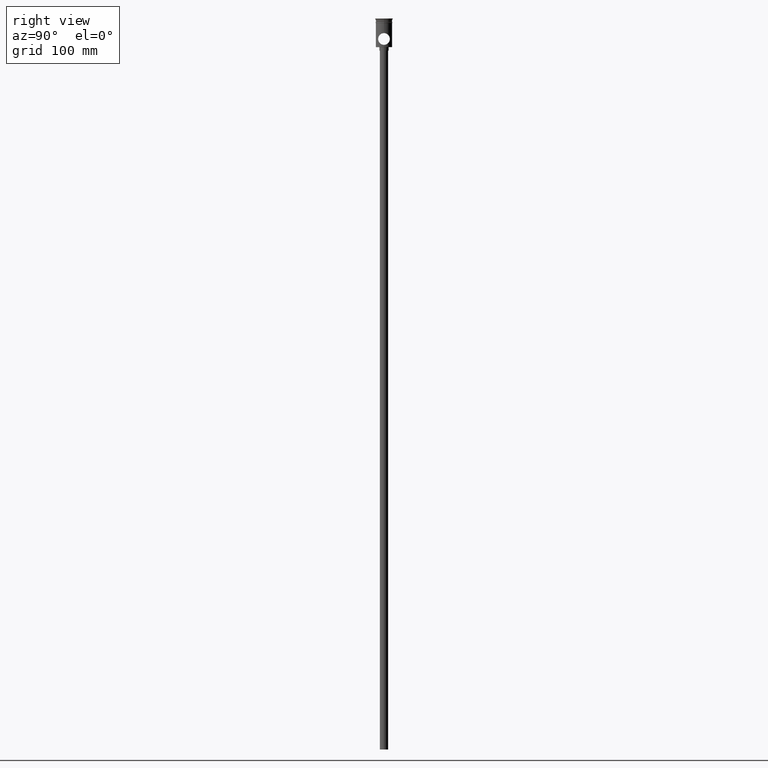
[diagram: clean part render]
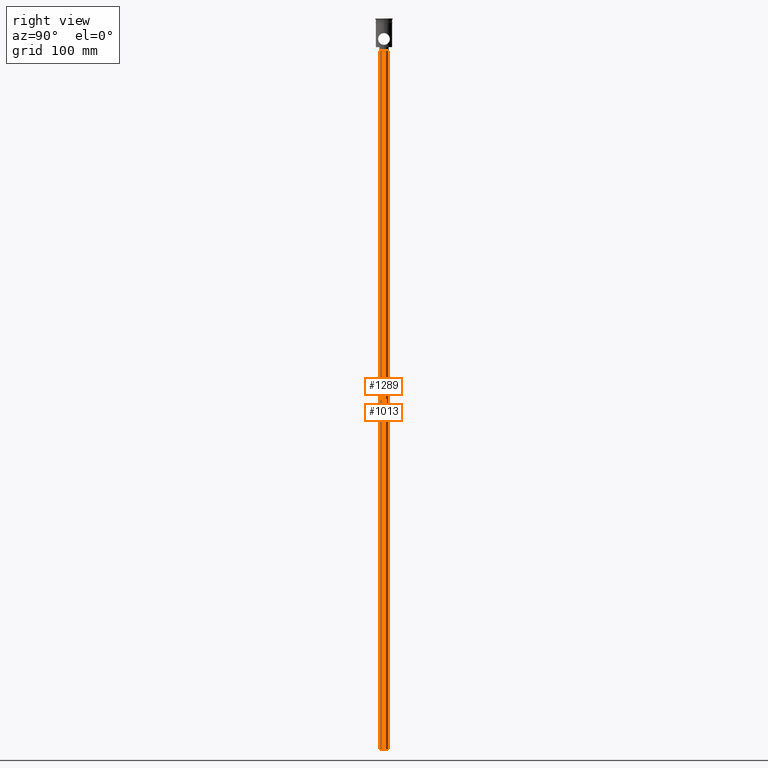
[diagram: same view with one multi-face feature highlighted, each face labeled with its STEP entity id]
A machine part, right view. The highlighted faces form ONE feature: a constant-radius fillet chain: 2 tangent blend faces with common blend radius 3.5 mm. The faces share edges in the B-rep.
Their STEP definitions:
[1] entity #1013 (Cylinder):
#115 = CIRCLE ( 'NONE', #955, 3.500000000000000444 ) ;
#225 = DIRECTION ( 'NONE',  ( 0.000000000000000000, 0.000000000000000000, -1.000000000000000000 ) ) ;
#245 = DIRECTION ( 'NONE',  ( 0.000000000000000000, 0.000000000000000000, -1.000000000000000000 ) ) ;
#267 = AXIS2_PLACEMENT_3D ( 'NONE', #1361, #225, #1359 ) ;
#319 = EDGE_CURVE ( 'NONE', #1096, #778, #1061, .T. ) ;
#378 = VECTOR ( 'NONE', #392, 1000.000000000000000 ) ;
#392 = DIRECTION ( 'NONE',  ( -0.000000000000000000, -0.000000000000000000, 1.000000000000000000 ) ) ;
#469 = CIRCLE ( 'NONE', #267, 3.500000000000000444 ) ;
#487 = VECTOR ( 'NONE', #1149, 1000.000000000000000 ) ;
#504 = CARTESIAN_POINT ( 'NONE',  ( -3.500000000000000444, 4.286263797015737088E-16, -624.5000000000000000 ) ) ;
#526 = ORIENTED_EDGE ( 'NONE', *, *, #319, .F. ) ;
#562 = CARTESIAN_POINT ( 'NONE',  ( -3.500000000000000444, 4.286263797015737088E-16, -624.5000000000000000 ) ) ;
#587 = DIRECTION ( 'NONE',  ( -1.000000000000000000, 0.000000000000000000, 0.000000000000000000 ) ) ;
#600 = FACE_OUTER_BOUND ( 'NONE', #967, .T. ) ;
#681 = ORIENTED_EDGE ( 'NONE', *, *, #733, .T. ) ;
#700 = CYLINDRICAL_SURFACE ( 'NONE', #1477, 3.500000000000000444 ) ;
#733 = EDGE_CURVE ( 'NONE', #1306, #773, #1066, .T. ) ;
#734 = CARTESIAN_POINT ( 'NONE',  ( 0.000000000000000000, 0.000000000000000000, -624.5000000000000000 ) ) ;
#773 = VERTEX_POINT ( 'NONE', #838 ) ;
#778 = VERTEX_POINT ( 'NONE', #1294 ) ;
#832 = ORIENTED_EDGE ( 'NONE', *, *, #1442, .F. ) ;
#835 = EDGE_CURVE ( 'NONE', #773, #778, #469, .T. ) ;
#838 = CARTESIAN_POINT ( 'NONE',  ( -3.500000000000000444, 4.286263797015737088E-16, -27.50000000000000000 ) ) ;
#839 = ORIENTED_EDGE ( 'NONE', *, *, #835, .T. ) ;
#926 = CARTESIAN_POINT ( 'NONE',  ( 3.500000000000000444, 0.000000000000000000, -624.5000000000000000 ) ) ;
#935 = CARTESIAN_POINT ( 'NONE',  ( 3.500000000000000444, 0.000000000000000000, -624.5000000000000000 ) ) ;
#955 = AXIS2_PLACEMENT_3D ( 'NONE', #734, #245, #587 ) ;
#967 = EDGE_LOOP ( 'NONE', ( #832, #681, #839, #526 ) ) ;
#1013 = ADVANCED_FACE ( 'NONE', ( #600 ), #700, .T. ) ;
#1057 = CARTESIAN_POINT ( 'NONE',  ( 0.000000000000000000, 0.000000000000000000, -624.5000000000000000 ) ) ;
#1061 = LINE ( 'NONE', #926, #487 ) ;
#1066 = LINE ( 'NONE', #504, #378 ) ;
#1096 = VERTEX_POINT ( 'NONE', #935 ) ;
#1149 = DIRECTION ( 'NONE',  ( -0.000000000000000000, -0.000000000000000000, 1.000000000000000000 ) ) ;
#1171 = DIRECTION ( 'NONE',  ( 1.000000000000000000, 0.000000000000000000, 0.000000000000000000 ) ) ;
#1259 = DIRECTION ( 'NONE',  ( -0.000000000000000000, -0.000000000000000000, 1.000000000000000000 ) ) ;
#1294 = CARTESIAN_POINT ( 'NONE',  ( 3.500000000000000444, 0.000000000000000000, -27.50000000000000000 ) ) ;
#1306 = VERTEX_POINT ( 'NONE', #562 ) ;
#1359 = DIRECTION ( 'NONE',  ( -1.000000000000000000, 0.000000000000000000, 0.000000000000000000 ) ) ;
#1361 = CARTESIAN_POINT ( 'NONE',  ( 0.000000000000000000, 0.000000000000000000, -27.50000000000000000 ) ) ;
#1442 = EDGE_CURVE ( 'NONE', #1306, #1096, #115, .T. ) ;
#1477 = AXIS2_PLACEMENT_3D ( 'NONE', #1057, #1259, #1171 ) ;
[2] entity #1289 (Cylinder):
#156 = DIRECTION ( 'NONE',  ( 0.000000000000000000, 0.000000000000000000, -1.000000000000000000 ) ) ;
#248 = DIRECTION ( 'NONE',  ( 0.000000000000000000, 0.000000000000000000, -1.000000000000000000 ) ) ;
#319 = EDGE_CURVE ( 'NONE', #1096, #778, #1061, .T. ) ;
#331 = DIRECTION ( 'NONE',  ( -0.000000000000000000, -0.000000000000000000, 1.000000000000000000 ) ) ;
#378 = VECTOR ( 'NONE', #392, 1000.000000000000000 ) ;
#388 = DIRECTION ( 'NONE',  ( -1.000000000000000000, 0.000000000000000000, 0.000000000000000000 ) ) ;
#392 = DIRECTION ( 'NONE',  ( -0.000000000000000000, -0.000000000000000000, 1.000000000000000000 ) ) ;
#487 = VECTOR ( 'NONE', #1149, 1000.000000000000000 ) ;
#504 = CARTESIAN_POINT ( 'NONE',  ( -3.500000000000000444, 4.286263797015737088E-16, -624.5000000000000000 ) ) ;
#562 = CARTESIAN_POINT ( 'NONE',  ( -3.500000000000000444, 4.286263797015737088E-16, -624.5000000000000000 ) ) ;
#581 = DIRECTION ( 'NONE',  ( -1.000000000000000000, 0.000000000000000000, 0.000000000000000000 ) ) ;
#615 = AXIS2_PLACEMENT_3D ( 'NONE', #1089, #156, #388 ) ;
#664 = ORIENTED_EDGE ( 'NONE', *, *, #319, .T. ) ;
#673 = CYLINDRICAL_SURFACE ( 'NONE', #1430, 3.500000000000000444 ) ;
#679 = FACE_OUTER_BOUND ( 'NONE', #1326, .T. ) ;
#690 = AXIS2_PLACEMENT_3D ( 'NONE', #802, #248, #581 ) ;
#733 = EDGE_CURVE ( 'NONE', #1306, #773, #1066, .T. ) ;
#773 = VERTEX_POINT ( 'NONE', #838 ) ;
#778 = VERTEX_POINT ( 'NONE', #1294 ) ;
#802 = CARTESIAN_POINT ( 'NONE',  ( 0.000000000000000000, 0.000000000000000000, -624.5000000000000000 ) ) ;
#828 = CIRCLE ( 'NONE', #690, 3.500000000000000444 ) ;
#838 = CARTESIAN_POINT ( 'NONE',  ( -3.500000000000000444, 4.286263797015737088E-16, -27.50000000000000000 ) ) ;
#905 = DIRECTION ( 'NONE',  ( 1.000000000000000000, 0.000000000000000000, 0.000000000000000000 ) ) ;
#926 = CARTESIAN_POINT ( 'NONE',  ( 3.500000000000000444, 0.000000000000000000, -624.5000000000000000 ) ) ;
#935 = CARTESIAN_POINT ( 'NONE',  ( 3.500000000000000444, 0.000000000000000000, -624.5000000000000000 ) ) ;
#1031 = EDGE_CURVE ( 'NONE', #1096, #1306, #828, .T. ) ;
#1061 = LINE ( 'NONE', #926, #487 ) ;
#1066 = LINE ( 'NONE', #504, #378 ) ;
#1073 = CIRCLE ( 'NONE', #615, 3.500000000000000444 ) ;
#1089 = CARTESIAN_POINT ( 'NONE',  ( 0.000000000000000000, 0.000000000000000000, -27.50000000000000000 ) ) ;
#1096 = VERTEX_POINT ( 'NONE', #935 ) ;
#1131 = EDGE_CURVE ( 'NONE', #778, #773, #1073, .T. ) ;
#1149 = DIRECTION ( 'NONE',  ( -0.000000000000000000, -0.000000000000000000, 1.000000000000000000 ) ) ;
#1217 = ORIENTED_EDGE ( 'NONE', *, *, #1131, .T. ) ;
#1241 = CARTESIAN_POINT ( 'NONE',  ( 0.000000000000000000, 0.000000000000000000, -624.5000000000000000 ) ) ;
#1289 = ADVANCED_FACE ( 'NONE', ( #679 ), #673, .T. ) ;
#1294 = CARTESIAN_POINT ( 'NONE',  ( 3.500000000000000444, 0.000000000000000000, -27.50000000000000000 ) ) ;
#1306 = VERTEX_POINT ( 'NONE', #562 ) ;
#1310 = ORIENTED_EDGE ( 'NONE', *, *, #1031, .F. ) ;
#1326 = EDGE_LOOP ( 'NONE', ( #1437, #1310, #664, #1217 ) ) ;
#1430 = AXIS2_PLACEMENT_3D ( 'NONE', #1241, #331, #905 ) ;
#1437 = ORIENTED_EDGE ( 'NONE', *, *, #733, .F. ) ;